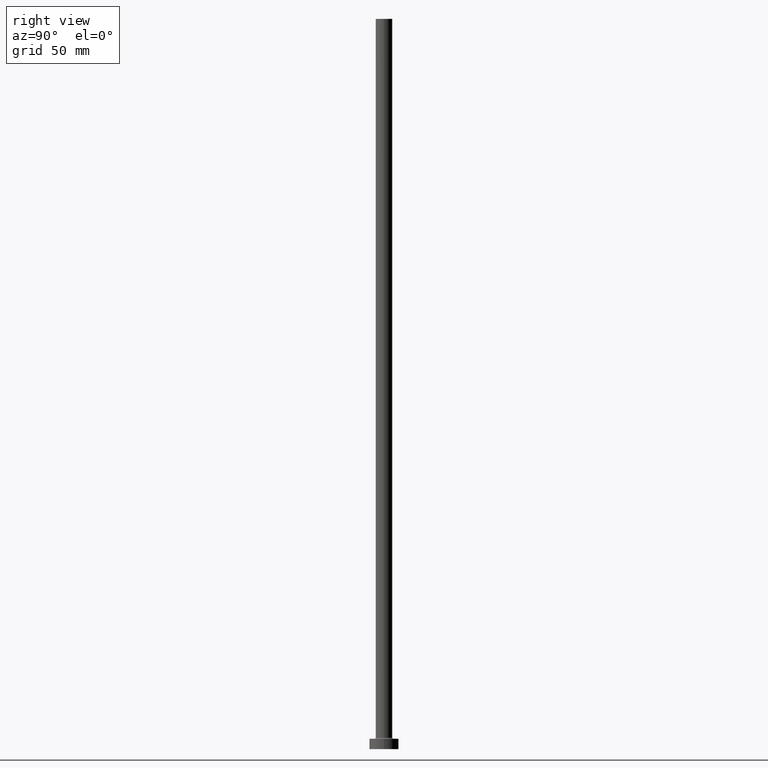
[diagram: clean part render]
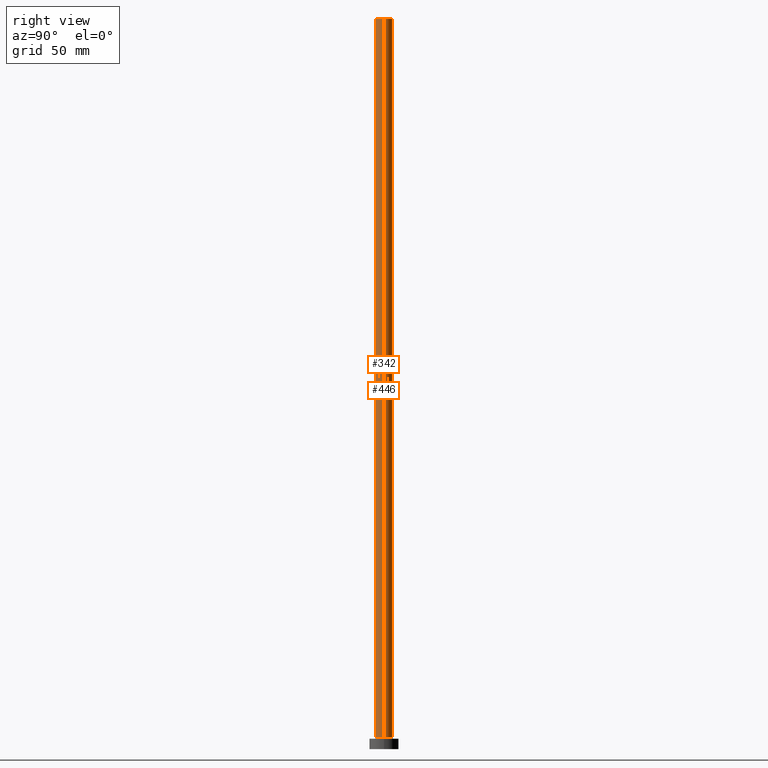
[diagram: same view with one multi-face feature highlighted, each face labeled with its STEP entity id]
A machine part, right view. The highlighted faces form ONE feature: a constant-radius fillet chain: 2 tangent blend faces with common blend radius 4 mm. The faces share edges in the B-rep.
Their STEP definitions:
[1] entity #342 (Cylinder):
#3 = DIRECTION ( 'NONE',  ( 0.000000000000000000, 0.000000000000000000, 1.000000000000000000 ) ) ;
#5 = CARTESIAN_POINT ( 'NONE',  ( 0.000000000000000000, 0.000000000000000000, 350.0000000000000000 ) ) ;
#6 = EDGE_CURVE ( 'NONE', #277, #183, #420, .T. ) ;
#19 = EDGE_CURVE ( 'NONE', #183, #375, #177, .T. ) ;
#30 = CARTESIAN_POINT ( 'NONE',  ( 4.000000000000000000, 4.898587196589412829E-16, 5.500000000000005329 ) ) ;
#36 = VECTOR ( 'NONE', #103, 1000.000000000000000 ) ;
#60 = AXIS2_PLACEMENT_3D ( 'NONE', #5, #340, #366 ) ;
#63 = DIRECTION ( 'NONE',  ( -0.000000000000000000, -0.000000000000000000, -1.000000000000000000 ) ) ;
#85 = EDGE_CURVE ( 'NONE', #175, #375, #328, .T. ) ;
#103 = DIRECTION ( 'NONE',  ( -0.000000000000000000, -0.000000000000000000, -1.000000000000000000 ) ) ;
#112 = EDGE_LOOP ( 'NONE', ( #138, #265, #343, #159 ) ) ;
#116 = DIRECTION ( 'NONE',  ( -0.000000000000000000, -0.000000000000000000, -1.000000000000000000 ) ) ;
#138 = ORIENTED_EDGE ( 'NONE', *, *, #85, .F. ) ;
#141 = EDGE_CURVE ( 'NONE', #277, #175, #233, .T. ) ;
#152 = CARTESIAN_POINT ( 'NONE',  ( 4.000000000000000000, 4.898587196589412829E-16, 350.0000000000000000 ) ) ;
#159 = ORIENTED_EDGE ( 'NONE', *, *, #19, .T. ) ;
#175 = VERTEX_POINT ( 'NONE', #152 ) ;
#177 = CIRCLE ( 'NONE', #435, 4.000000000000000000 ) ;
#183 = VERTEX_POINT ( 'NONE', #432 ) ;
#201 = DIRECTION ( 'NONE',  ( -1.000000000000000000, 0.000000000000000000, 0.000000000000000000 ) ) ;
#202 = DIRECTION ( 'NONE',  ( 1.000000000000000000, 0.000000000000000000, 0.000000000000000000 ) ) ;
#230 = CYLINDRICAL_SURFACE ( 'NONE', #344, 4.000000000000000000 ) ;
#232 = VECTOR ( 'NONE', #116, 1000.000000000000000 ) ;
#233 = CIRCLE ( 'NONE', #60, 4.000000000000000000 ) ;
#241 = CARTESIAN_POINT ( 'NONE',  ( 0.000000000000000000, 0.000000000000000000, 5.500000000000005329 ) ) ;
#265 = ORIENTED_EDGE ( 'NONE', *, *, #141, .F. ) ;
#277 = VERTEX_POINT ( 'NONE', #414 ) ;
#291 = CARTESIAN_POINT ( 'NONE',  ( 4.000000000000000000, 4.898587196589412829E-16, 350.0000000000000000 ) ) ;
#328 = LINE ( 'NONE', #291, #232 ) ;
#340 = DIRECTION ( 'NONE',  ( 0.000000000000000000, 0.000000000000000000, 1.000000000000000000 ) ) ;
#342 = ADVANCED_FACE ( 'NONE', ( #409 ), #230, .T. ) ;
#343 = ORIENTED_EDGE ( 'NONE', *, *, #6, .T. ) ;
#344 = AXIS2_PLACEMENT_3D ( 'NONE', #382, #63, #201 ) ;
#361 = CARTESIAN_POINT ( 'NONE',  ( -4.000000000000000000, 0.000000000000000000, 350.0000000000000000 ) ) ;
#366 = DIRECTION ( 'NONE',  ( 1.000000000000000000, 0.000000000000000000, 0.000000000000000000 ) ) ;
#375 = VERTEX_POINT ( 'NONE', #30 ) ;
#382 = CARTESIAN_POINT ( 'NONE',  ( 0.000000000000000000, 0.000000000000000000, 350.0000000000000000 ) ) ;
#409 = FACE_OUTER_BOUND ( 'NONE', #112, .T. ) ;
#414 = CARTESIAN_POINT ( 'NONE',  ( -4.000000000000000000, 0.000000000000000000, 350.0000000000000000 ) ) ;
#420 = LINE ( 'NONE', #361, #36 ) ;
#432 = CARTESIAN_POINT ( 'NONE',  ( -4.000000000000000000, 0.000000000000000000, 5.500000000000005329 ) ) ;
#435 = AXIS2_PLACEMENT_3D ( 'NONE', #241, #3, #202 ) ;
[2] entity #446 (Cylinder):
#6 = EDGE_CURVE ( 'NONE', #277, #183, #420, .T. ) ;
#30 = CARTESIAN_POINT ( 'NONE',  ( 4.000000000000000000, 4.898587196589412829E-16, 5.500000000000005329 ) ) ;
#36 = VECTOR ( 'NONE', #103, 1000.000000000000000 ) ;
#42 = CIRCLE ( 'NONE', #126, 4.000000000000000000 ) ;
#62 = ORIENTED_EDGE ( 'NONE', *, *, #273, .T. ) ;
#65 = CARTESIAN_POINT ( 'NONE',  ( 0.000000000000000000, 0.000000000000000000, 5.500000000000005329 ) ) ;
#81 = AXIS2_PLACEMENT_3D ( 'NONE', #199, #267, #92 ) ;
#85 = EDGE_CURVE ( 'NONE', #175, #375, #328, .T. ) ;
#92 = DIRECTION ( 'NONE',  ( 1.000000000000000000, 0.000000000000000000, 0.000000000000000000 ) ) ;
#101 = ORIENTED_EDGE ( 'NONE', *, *, #6, .F. ) ;
#103 = DIRECTION ( 'NONE',  ( -0.000000000000000000, -0.000000000000000000, -1.000000000000000000 ) ) ;
#108 = FACE_OUTER_BOUND ( 'NONE', #248, .T. ) ;
#110 = CARTESIAN_POINT ( 'NONE',  ( 0.000000000000000000, 0.000000000000000000, 350.0000000000000000 ) ) ;
#113 = DIRECTION ( 'NONE',  ( -1.000000000000000000, 0.000000000000000000, 0.000000000000000000 ) ) ;
#114 = ORIENTED_EDGE ( 'NONE', *, *, #85, .T. ) ;
#116 = DIRECTION ( 'NONE',  ( -0.000000000000000000, -0.000000000000000000, -1.000000000000000000 ) ) ;
#126 = AXIS2_PLACEMENT_3D ( 'NONE', #65, #348, #203 ) ;
#152 = CARTESIAN_POINT ( 'NONE',  ( 4.000000000000000000, 4.898587196589412829E-16, 350.0000000000000000 ) ) ;
#175 = VERTEX_POINT ( 'NONE', #152 ) ;
#178 = DIRECTION ( 'NONE',  ( -0.000000000000000000, -0.000000000000000000, -1.000000000000000000 ) ) ;
#183 = VERTEX_POINT ( 'NONE', #432 ) ;
#199 = CARTESIAN_POINT ( 'NONE',  ( 0.000000000000000000, 0.000000000000000000, 350.0000000000000000 ) ) ;
#200 = ORIENTED_EDGE ( 'NONE', *, *, #339, .F. ) ;
#203 = DIRECTION ( 'NONE',  ( 1.000000000000000000, 0.000000000000000000, 0.000000000000000000 ) ) ;
#232 = VECTOR ( 'NONE', #116, 1000.000000000000000 ) ;
#248 = EDGE_LOOP ( 'NONE', ( #200, #114, #62, #101 ) ) ;
#267 = DIRECTION ( 'NONE',  ( 0.000000000000000000, 0.000000000000000000, 1.000000000000000000 ) ) ;
#273 = EDGE_CURVE ( 'NONE', #375, #183, #42, .T. ) ;
#277 = VERTEX_POINT ( 'NONE', #414 ) ;
#291 = CARTESIAN_POINT ( 'NONE',  ( 4.000000000000000000, 4.898587196589412829E-16, 350.0000000000000000 ) ) ;
#328 = LINE ( 'NONE', #291, #232 ) ;
#339 = EDGE_CURVE ( 'NONE', #175, #277, #350, .T. ) ;
#348 = DIRECTION ( 'NONE',  ( 0.000000000000000000, 0.000000000000000000, 1.000000000000000000 ) ) ;
#350 = CIRCLE ( 'NONE', #81, 4.000000000000000000 ) ;
#355 = CYLINDRICAL_SURFACE ( 'NONE', #364, 4.000000000000000000 ) ;
#361 = CARTESIAN_POINT ( 'NONE',  ( -4.000000000000000000, 0.000000000000000000, 350.0000000000000000 ) ) ;
#364 = AXIS2_PLACEMENT_3D ( 'NONE', #110, #178, #113 ) ;
#375 = VERTEX_POINT ( 'NONE', #30 ) ;
#414 = CARTESIAN_POINT ( 'NONE',  ( -4.000000000000000000, 0.000000000000000000, 350.0000000000000000 ) ) ;
#420 = LINE ( 'NONE', #361, #36 ) ;
#432 = CARTESIAN_POINT ( 'NONE',  ( -4.000000000000000000, 0.000000000000000000, 5.500000000000005329 ) ) ;
#446 = ADVANCED_FACE ( 'NONE', ( #108 ), #355, .T. ) ;